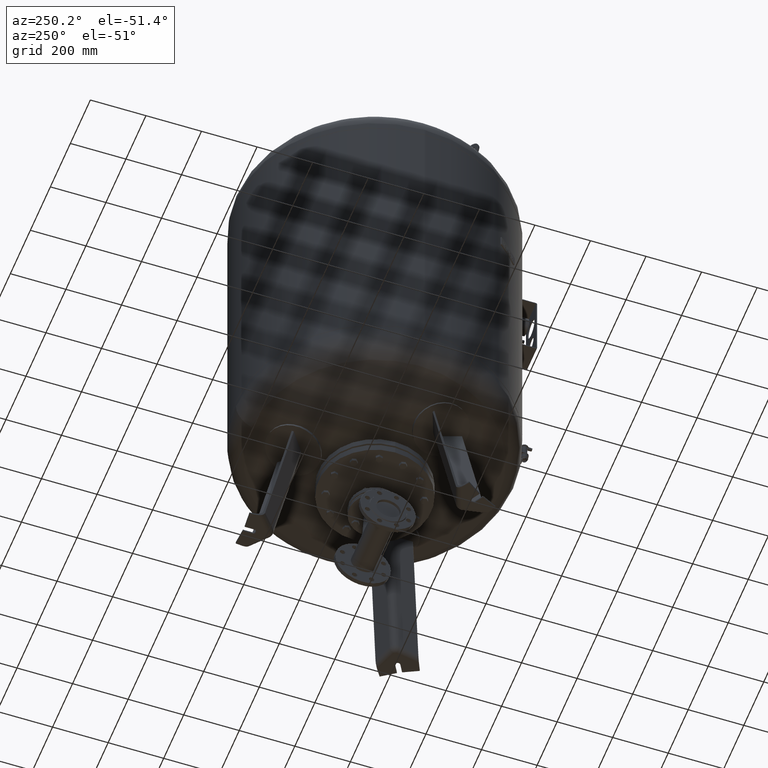
[diagram: clean part render]
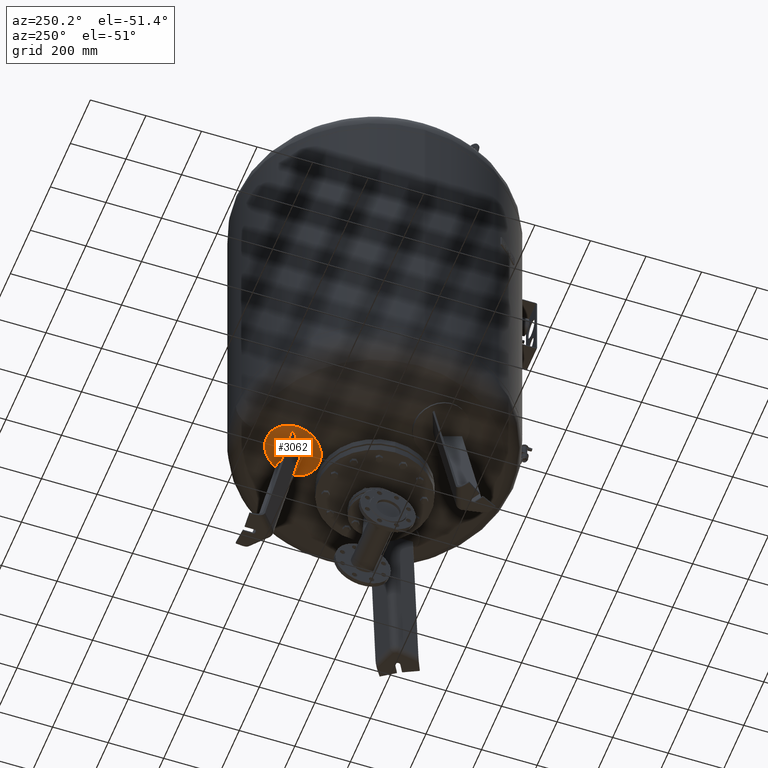
[diagram: same view with one face highlighted and labeled with its STEP entity id]
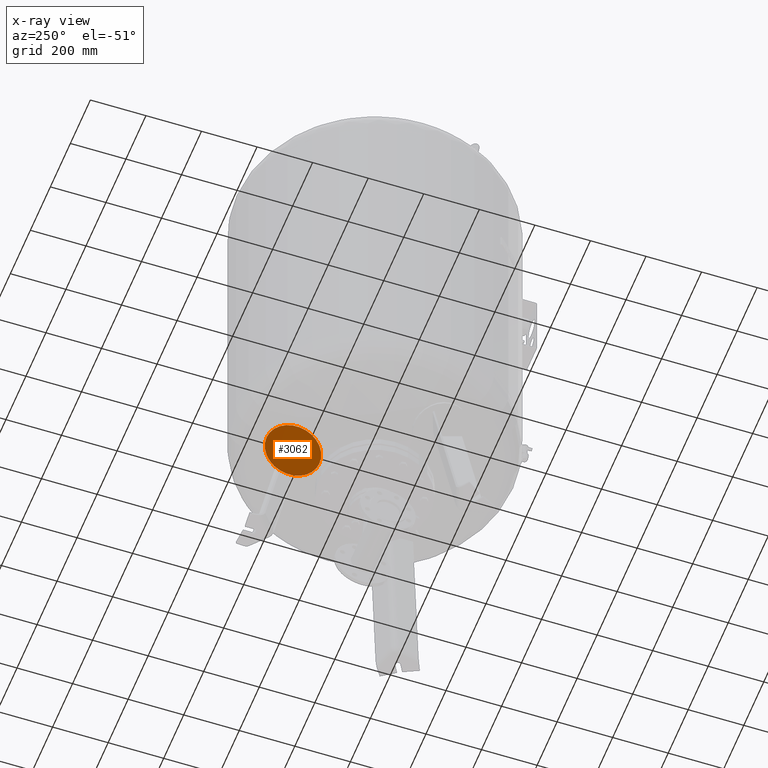
[diagram: x-ray of the same camera — body ghosted, the highlighted face saturated]
A machine part, auxiliary view. The second image highlights one B-rep face of the part: STEP entity #3062.
The next image is the same camera in x-ray: the body ghosted, the highlighted face saturated — about 0% of this face is hidden behind the body in this view.
In plain terms, the highlighted spherical surface has radius 1006 mm.
Its self-contained STEP definition (entity closure, byte-faithful):
#2970=CARTESIAN_POINT('',(-5.046704E-014,199.528414518467510,469.158360530759180));
#2971=VERTEX_POINT('',#2970);
#2980=CARTESIAN_POINT('',(4.202938E-014,389.739717777498190,530.961759405748810));
#2981=VERTEX_POINT('',#2980);
#2982=CARTESIAN_POINT('',(-1.030986E-014,294.634066147982940,500.060059968254050));
#2983=DIRECTION('',(1.505446E-016,0.309016994374948,-0.951056516295154));
#2984=DIRECTION('',(-4.011226E-016,-0.951056516295154,-0.309016994374948));
#2985=AXIS2_PLACEMENT_3D('',#2982,#2983,#2984);
#2986=CIRCLE('',#2985,100.0);
#2987=EDGE_CURVE('',#2981,#2971,#2986,.T.);
#3043=CARTESIAN_POINT('',(-1.030986E-014,294.634066147982940,500.060059968254050));
#3044=DIRECTION('',(1.505446E-016,0.309016994374948,-0.951056516295154));
#3045=DIRECTION('',(-4.011226E-016,-0.951056516295154,-0.309016994374948));
#3046=AXIS2_PLACEMENT_3D('',#3043,#3044,#3045);
#3047=CIRCLE('',#3046,100.0);
#3048=EDGE_CURVE('',#2971,#2981,#3047,.T.);
#3053=CARTESIAN_POINT('',(-1.610067E-013,-14.697347569170347,1452.084259496684100));
#3054=DIRECTION('',(-1.0,0.0,0.0));
#3055=DIRECTION('',(-4.011226E-016,-0.951056516295154,-0.309016994374948));
#3056=AXIS2_PLACEMENT_3D('',#3053,#3054,#3055);
#3057=SPHERICAL_SURFACE('',#3056,1006.0);
#3058=ORIENTED_EDGE('',*,*,#3048,.T.);
#3059=ORIENTED_EDGE('',*,*,#2987,.T.);
#3060=EDGE_LOOP('',(#3058,#3059));
#3061=FACE_OUTER_BOUND('',#3060,.T.);
#3062=ADVANCED_FACE('',(#3061),#3057,.T.);